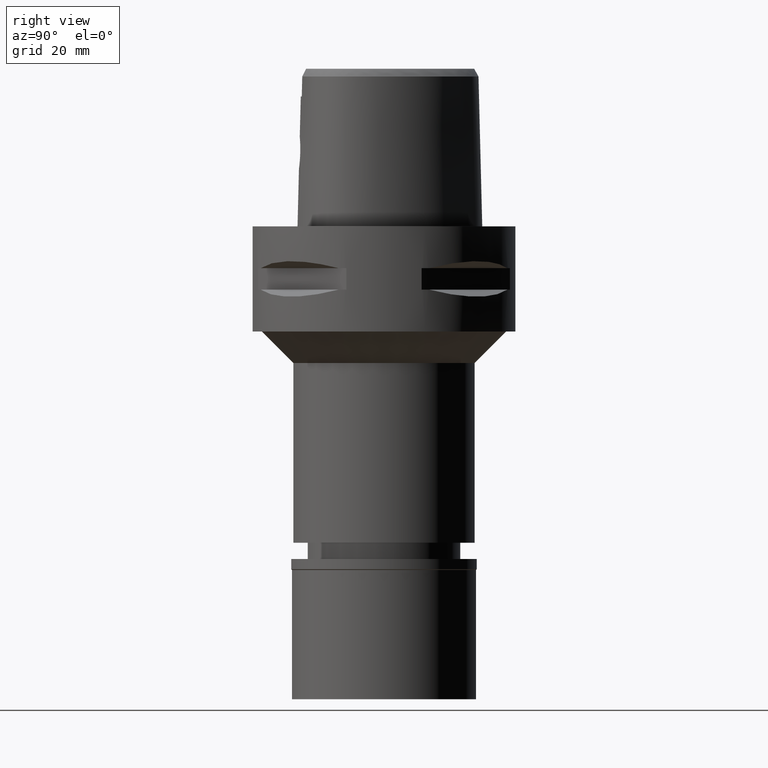
[diagram: clean part render]
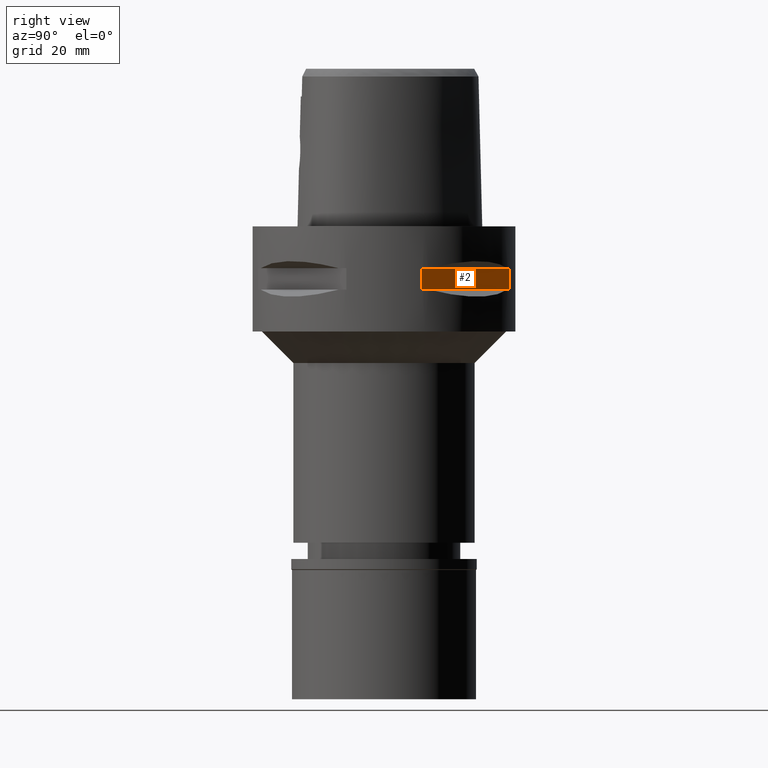
[diagram: same view with one face highlighted and labeled with its STEP entity id]
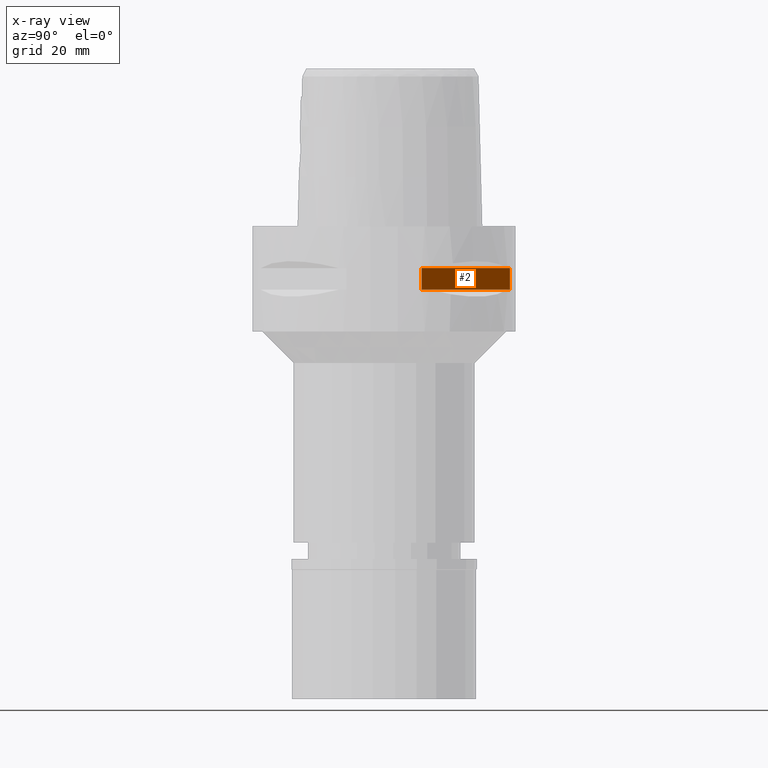
[diagram: x-ray of the same camera — body ghosted, the highlighted face saturated]
A machine part, right view. The second image highlights one B-rep face of the part: STEP entity #2.
The next image is the same camera in x-ray: the body ghosted, the highlighted face saturated — about 0% of this face is hidden behind the body in this view.
In plain terms, the highlighted planar face has unit normal (-0.7071, -0.7071, 0).
Its self-contained STEP definition (entity closure, byte-faithful):
#2 = ADVANCED_FACE ( 'NONE', ( #4793 ), #3642, .F. ) ;
#80 = VERTEX_POINT ( 'NONE', #4235 ) ;
#154 = EDGE_LOOP ( 'NONE', ( #334, #3661, #1764, #3309 ) ) ;
#334 = ORIENTED_EDGE ( 'NONE', *, *, #354, .F. ) ;
#354 = EDGE_CURVE ( 'NONE', #3881, #80, #1730, .T. ) ;
#612 = EDGE_CURVE ( 'NONE', #1397, #80, #2898, .T. ) ;
#716 = VECTOR ( 'NONE', #4641, 1000.000000000000114 ) ;
#908 = DIRECTION ( 'NONE',  ( -0.7071067811865474617, 0.7071067811865474617, 0.0000000000000000000 ) ) ;
#1082 = AXIS2_PLACEMENT_3D ( 'NONE', #2536, #1869, #3300 ) ;
#1093 = LINE ( 'NONE', #4389, #2818 ) ;
#1099 = CARTESIAN_POINT ( 'NONE',  ( 7.159921374230999724, 23.95277699797999915, -12.05000000000000071 ) ) ;
#1317 = LINE ( 'NONE', #2030, #716 ) ;
#1397 = VERTEX_POINT ( 'NONE', #4167 ) ;
#1730 = LINE ( 'NONE', #2762, #4802 ) ;
#1764 = ORIENTED_EDGE ( 'NONE', *, *, #4322, .T. ) ;
#1869 = DIRECTION ( 'NONE',  ( -0.7071067811865475727, -0.7071067811865475727, 0.0000000000000000000 ) ) ;
#2030 = CARTESIAN_POINT ( 'NONE',  ( 23.95277699797999915, 7.159921374230999724, -12.05000000000000071 ) ) ;
#2130 = EDGE_CURVE ( 'NONE', #3881, #3998, #1093, .T. ) ;
#2525 = VECTOR ( 'NONE', #2581, 1000.000000000000000 ) ;
#2536 = CARTESIAN_POINT ( 'NONE',  ( 4.949747468305999654, 26.16295090389999700, -7.950000000000000178 ) ) ;
#2581 = DIRECTION ( 'NONE',  ( 0.0000000000000000000, 0.0000000000000000000, 1.000000000000000000 ) ) ;
#2762 = CARTESIAN_POINT ( 'NONE',  ( 23.95277699797999915, 7.159921374230999724, -7.950000000000000178 ) ) ;
#2818 = VECTOR ( 'NONE', #3284, 1000.000000000000000 ) ;
#2898 = LINE ( 'NONE', #1099, #2525 ) ;
#3008 = CARTESIAN_POINT ( 'NONE',  ( 23.95277699797999915, 7.159921374235000080, -7.950000000000000178 ) ) ;
#3284 = DIRECTION ( 'NONE',  ( 0.0000000000000000000, 0.0000000000000000000, -1.000000000000000000 ) ) ;
#3300 = DIRECTION ( 'NONE',  ( -0.7071067811865475727, 0.7071067811865475727, 0.0000000000000000000 ) ) ;
#3309 = ORIENTED_EDGE ( 'NONE', *, *, #612, .T. ) ;
#3642 = PLANE ( 'NONE',  #1082 ) ;
#3661 = ORIENTED_EDGE ( 'NONE', *, *, #2130, .T. ) ;
#3881 = VERTEX_POINT ( 'NONE', #3008 ) ;
#3998 = VERTEX_POINT ( 'NONE', #4626 ) ;
#4167 = CARTESIAN_POINT ( 'NONE',  ( 7.159921374235000080, 23.95277699797999915, -12.05000000000000071 ) ) ;
#4235 = CARTESIAN_POINT ( 'NONE',  ( 7.159921374230999724, 23.95277699797999915, -7.950000000000000178 ) ) ;
#4322 = EDGE_CURVE ( 'NONE', #3998, #1397, #1317, .T. ) ;
#4389 = CARTESIAN_POINT ( 'NONE',  ( 23.95277699797999915, 7.159921374230999724, -7.950000000000000178 ) ) ;
#4626 = CARTESIAN_POINT ( 'NONE',  ( 23.95277699797999915, 7.159921374230999724, -12.05000000000000071 ) ) ;
#4641 = DIRECTION ( 'NONE',  ( -0.7071067811865474617, 0.7071067811865474617, 0.0000000000000000000 ) ) ;
#4793 = FACE_OUTER_BOUND ( 'NONE', #154, .T. ) ;
#4802 = VECTOR ( 'NONE', #908, 1000.000000000000114 ) ;